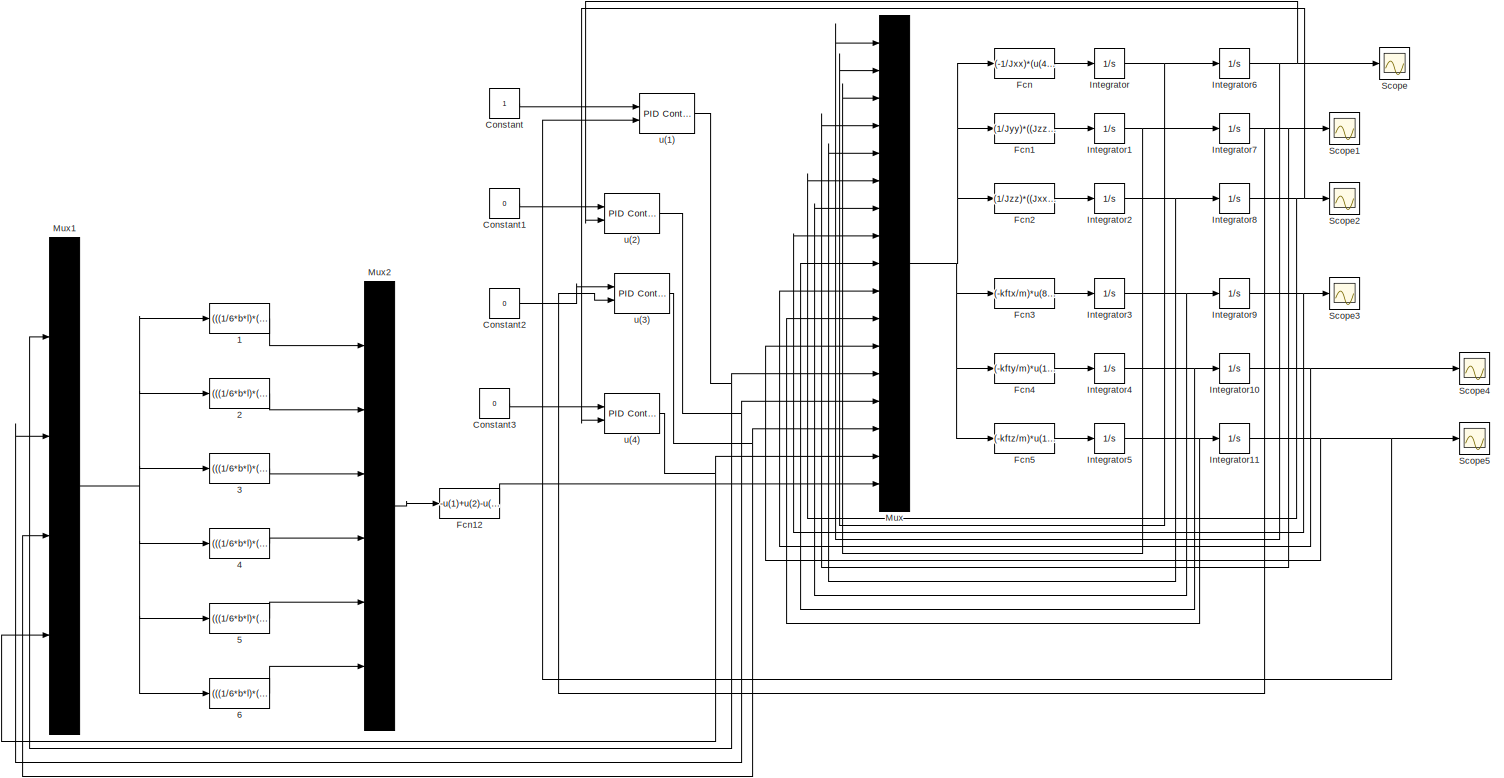
[diagram: root canvas - part 1/1, most of the canvas]
MODEL slx_79d4ff6618f3
KIND model
CONFIG AbsTol = auto
CONFIG EnableMultiTasking = off
CONFIG FixedStep = auto
CONFIG MaxStep = auto
CONFIG MinStep = auto
CONFIG RelTol = 1e-3
CONFIG SampleTimeConstraint = Unconstrained
CONFIG Solver = VariableStepAuto
CONFIG SolverName = VariableStepAuto
CONFIG StartTime = 0.0
CONFIG StopTime = 10.0
BLOCK [Fcn] 1
  Expr = (((1/6*b*l)*(l*u(1)+2*u(2))-(b*l*u(4)/d)))^0.5
BLOCK [Fcn] 2
  Expr = (((1/6*b*l)*(l*u(1)+u(2))+(b*l*u(4)/d)-(3^0.5)*u(3)))^0.5
BLOCK [Fcn] 3
  Expr = (((1/6*b*l)*(l*u(1)-u(2))-(b*l*u(4)/d)-(3^0.5)*u(3)))^0.5
BLOCK [Fcn] 4
  Expr = (((1/6*b*l)*(l*u(1)-2*u(2))+(b*l*u(4)/d)))^0.5
BLOCK [Fcn] 5
  Expr = (((1/6*b*l)*(l*u(1)-u(2))-(b*l*u(4)/d)+(3^0.5)*u(3)))^0.5
BLOCK [Fcn] 6
  Expr = (((1/6*b*l)*(l*u(1)+u(2))+(b*l*u(4)/d)+(3^0.5)*u(3)))^0.5
BLOCK [Constant] Constant
BLOCK [Constant] Constant1
  Value = 0
BLOCK [Constant] Constant2
  Value = 0
BLOCK [Constant] Constant3
  Value = 0
BLOCK [Fcn] Fcn
  Expr = (-1/Jxx)*(u(4)*u(6)*(Jyy-Jzz)*Kfax*((u(2))^2)-Jr*u(17)*u(4)+u(14))
BLOCK [Fcn] Fcn1
  Expr = (1/Jyy)*((Jzz-Jxx)-Kfay*(u(3))^2+Jr*u(17)*u(1)+u(15))
BLOCK [Fcn] Fcn12
  Expr = -u(1)+u(2)-u(3)+u(4)-u(5)+u(6)
BLOCK [Fcn] Fcn2
  Expr = (1/Jzz)*((Jxx-Jzz)-Kfaz*(u(6))^2+u(16))
BLOCK [Fcn] Fcn3
  Expr = (-kftx/m)*u(8)+(1/m)*((cos(u(1))*cos(u(5))*sin(u(3)))+sin(u(1))*sin(u(5)))*u(13)
BLOCK [Fcn] Fcn4
  Expr = (-kfty/m)*u(10)+(1/m)*((cos(u(1))*sin(u(3))*sin(u(5)))-sin(u(1))*sin(u(5)))*u(13)
BLOCK [Fcn] Fcn5
  Expr = (-kftz/m)*u(12)-g+(((cos(u(1)))*(cos(u(3))))/m)*u(13)
BLOCK [Integrator] Integrator
  Ports = [1, 1]
BLOCK [Integrator] Integrator1
  Ports = [1, 1]
BLOCK [Integrator] Integrator10
  Ports = [1, 1]
BLOCK [Integrator] Integrator11
  Ports = [1, 1]
BLOCK [Integrator] Integrator2
  Ports = [1, 1]
BLOCK [Integrator] Integrator3
  Ports = [1, 1]
BLOCK [Integrator] Integrator4
  Ports = [1, 1]
BLOCK [Integrator] Integrator5
  Ports = [1, 1]
BLOCK [Integrator] Integrator6
  Ports = [1, 1]
BLOCK [Integrator] Integrator7
  Ports = [1, 1]
BLOCK [Integrator] Integrator8
  Ports = [1, 1]
BLOCK [Integrator] Integrator9
  Ports = [1, 1]
BLOCK [Mux] Mux
  DisplayOption = bar
  Inputs = 17
  Ports = [17, 1]
BLOCK [Mux] Mux1
  DisplayOption = bar
  Ports = [4, 1]
BLOCK [Mux] Mux2
  DisplayOption = bar
  Inputs = 6
  Ports = [6, 1]
BLOCK [Scope] Scope
  NumInputPorts = 1
  Ports = [1]
  ScopeSpecificationString = Simulink.scopes.TimeScopeBlockCfg('CurrentConfiguration', extmgr.ConfigurationSet(extmgr.Configuration('Core','General UI',true),extmgr.Configuration('Core','Source UI',true),extmgr.Configuration('Sources','WiredSimulink',true),extmgr.Configuration('Visuals','Time Domain',true),extmgr.Configuration('Tools','Plot Navigation',true),extmgr.Configuration('Tools','Measurements',true)),'Version','2017a'...<+1ch>
BLOCK [Scope] Scope1
  NumInputPorts = 1
  Ports = [1]
  ScopeSpecificationString = Simulink.scopes.TimeScopeBlockCfg('CurrentConfiguration', extmgr.ConfigurationSet(extmgr.Configuration('Core','General UI',true),extmgr.Configuration('Core','Source UI',true),extmgr.Configuration('Sources','WiredSimulink',true,'DataLoggingVariableName','ScopeData1'),extmgr.Configuration('Visuals','Time Domain',true),extmgr.Configuration('Tools','Plot Navigation',true),extmgr.Configuration('Tools',...<+40ch>
BLOCK [Scope] Scope2
  NumInputPorts = 1
  Ports = [1]
  ScopeSpecificationString = Simulink.scopes.TimeScopeBlockCfg('CurrentConfiguration', extmgr.ConfigurationSet(extmgr.Configuration('Core','General UI',true),extmgr.Configuration('Core','Source UI',true),extmgr.Configuration('Sources','WiredSimulink',true,'DataLoggingVariableName','ScopeData2'),extmgr.Configuration('Visuals','Time Domain',true),extmgr.Configuration('Tools','Plot Navigation',true),extmgr.Configuration('Tools',...<+40ch>
BLOCK [Scope] Scope3
  NumInputPorts = 1
  Ports = [1]
  ScopeSpecificationString = Simulink.scopes.TimeScopeBlockCfg('CurrentConfiguration', extmgr.ConfigurationSet(extmgr.Configuration('Core','General UI',true),extmgr.Configuration('Core','Source UI',true),extmgr.Configuration('Sources','WiredSimulink',true,'DataLoggingVariableName','ScopeData3'),extmgr.Configuration('Visuals','Time Domain',true),extmgr.Configuration('Tools','Plot Navigation',true),extmgr.Configuration('Tools',...<+40ch>
BLOCK [Scope] Scope4
  NumInputPorts = 1
  Ports = [1]
  ScopeSpecificationString = Simulink.scopes.TimeScopeBlockCfg('CurrentConfiguration', extmgr.ConfigurationSet(extmgr.Configuration('Core','General UI',true),extmgr.Configuration('Core','Source UI',true),extmgr.Configuration('Sources','WiredSimulink',true,'DataLoggingVariableName','ScopeData4'),extmgr.Configuration('Visuals','Time Domain',true),extmgr.Configuration('Tools','Plot Navigation',true),extmgr.Configuration('Tools',...<+40ch>
BLOCK [Scope] Scope5
  NumInputPorts = 1
  Ports = [1]
  ScopeSpecificationString = Simulink.scopes.TimeScopeBlockCfg('CurrentConfiguration', extmgr.ConfigurationSet(extmgr.Configuration('Core','General UI',true),extmgr.Configuration('Core','Source UI',true),extmgr.Configuration('Sources','WiredSimulink',true,'DataLoggingVariableName','ScopeData5'),extmgr.Configuration('Visuals','Time Domain',true),extmgr.Configuration('Tools','Plot Navigation',true),extmgr.Configuration('Tools',...<+40ch>
BLOCK [Reference] u(1)  REF=simulink/Continuous/PID Controller (2DOF)
  Ports = [2, 1]
  SourceBlock = simulink/Continuous/PID Controller (2DOF)
  SourceProductBaseCode = SL
  SourceProductName = Simulink
  SourceType = PID 2dof
BLOCK [Reference] u(2)  REF=simulink/Continuous/PID Controller (2DOF)
  Ports = [2, 1]
  SourceBlock = simulink/Continuous/PID Controller (2DOF)
  SourceProductBaseCode = SL
  SourceProductName = Simulink
  SourceType = PID 2dof
BLOCK [Reference] u(3)  REF=simulink/Continuous/PID Controller (2DOF)
  Ports = [2, 1]
  SourceBlock = simulink/Continuous/PID Controller (2DOF)
  SourceProductBaseCode = SL
  SourceProductName = Simulink
  SourceType = PID 2dof
BLOCK [Reference] u(4)  REF=simulink/Continuous/PID Controller (2DOF)
  Ports = [2, 1]
  SourceBlock = simulink/Continuous/PID Controller (2DOF)
  SourceProductBaseCode = SL
  SourceProductName = Simulink
  SourceType = PID 2dof
LINE 1:1 -> Mux2:1
LINE 2:1 -> Mux2:2
LINE 3:1 -> Mux2:3
LINE 4:1 -> Mux2:4
LINE 5:1 -> Mux2:5
LINE 6:1 -> Mux2:6
LINE Constant1:1 -> u(2):1
LINE Constant2:1 -> u(3):1
LINE Constant3:1 -> u(4):1
LINE Constant:1 -> u(1):1
LINE Fcn12:1 -> Mux:17
LINE Fcn1:1 -> Integrator1:1
LINE Fcn2:1 -> Integrator2:1
LINE Fcn3:1 -> Integrator3:1
LINE Fcn4:1 -> Integrator4:1
LINE Fcn5:1 -> Integrator5:1
LINE Fcn:1 -> Integrator:1
NET Integrator10:1 -> Mux:10, Scope4:1
NET Integrator11:1 -> Mux:12, Scope5:1, u(1):2
NET Integrator1:1 -> Integrator7:1, Mux:3
NET Integrator2:1 -> Integrator8:1, Mux:5
NET Integrator3:1 -> Integrator9:1, Mux:7
NET Integrator4:1 -> Integrator10:1, Mux:9
NET Integrator5:1 -> Integrator11:1, Mux:11
NET Integrator6:1 -> Mux:1, Scope:1, u(2):2
NET Integrator7:1 -> Mux:4, Scope1:1, u(3):2
NET Integrator8:1 -> Mux:6, Scope2:1, u(4):2
NET Integrator9:1 -> Mux:8, Scope3:1
NET Integrator:1 -> Integrator6:1, Mux:2
NET Mux1:1 -> 1:1, 2:1, 3:1, 4:1, 5:1, 6:1
LINE Mux2:1 -> Fcn12:1
NET Mux:1 -> Fcn1:1, Fcn2:1, Fcn3:1, Fcn4:1, Fcn5:1, Fcn:1
NET u(1):1 -> Mux1:1, Mux:13
NET u(2):1 -> Mux1:2, Mux:14
NET u(3):1 -> Mux1:3, Mux:15
NET u(4):1 -> Mux1:4, Mux:16
note: NET lines group one-source signal fan-out (src -> all destinations, sorted); 1:1 wires keep LINE
